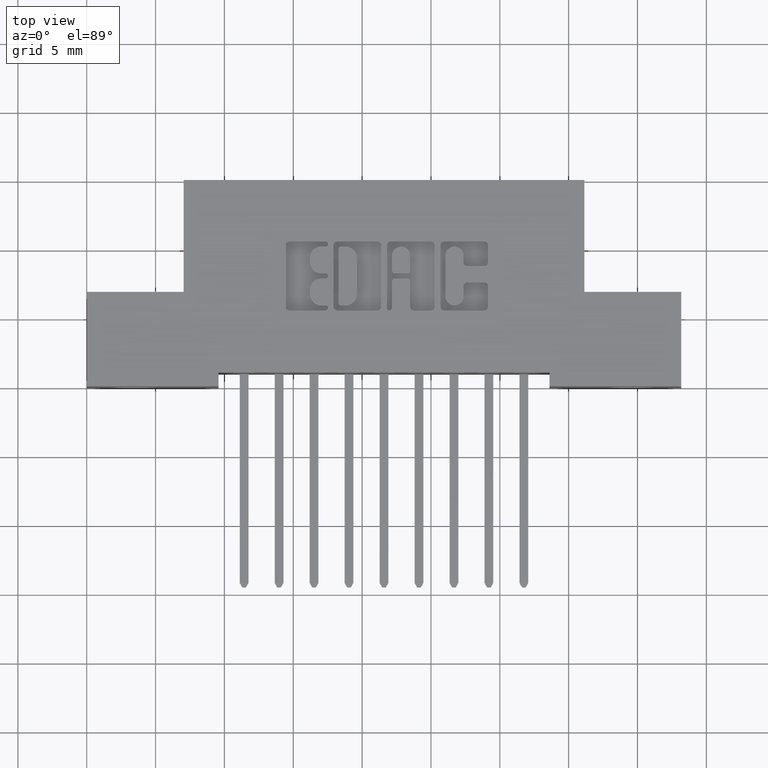
[diagram: clean part render]
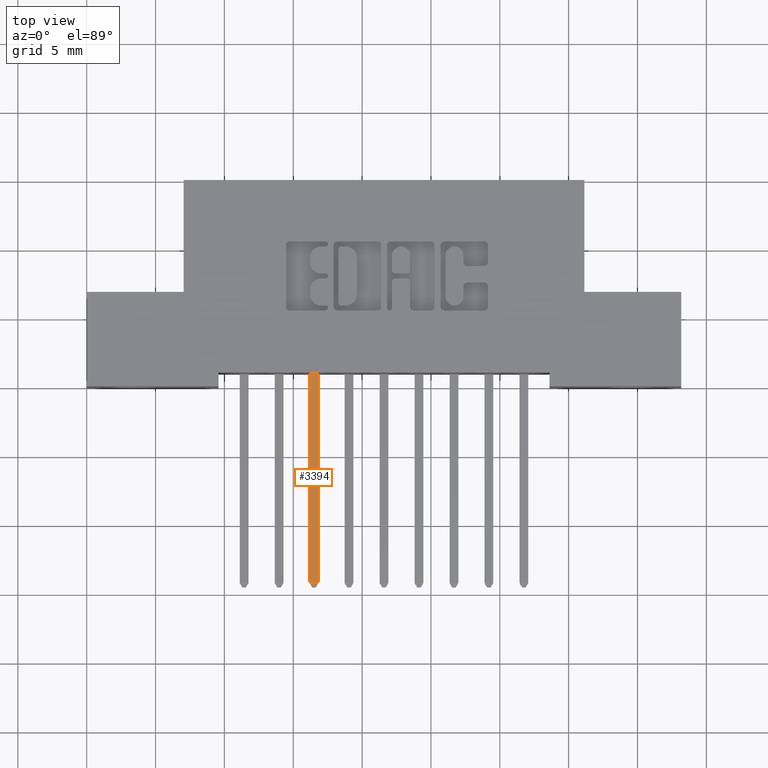
[diagram: same view with one face highlighted and labeled with its STEP entity id]
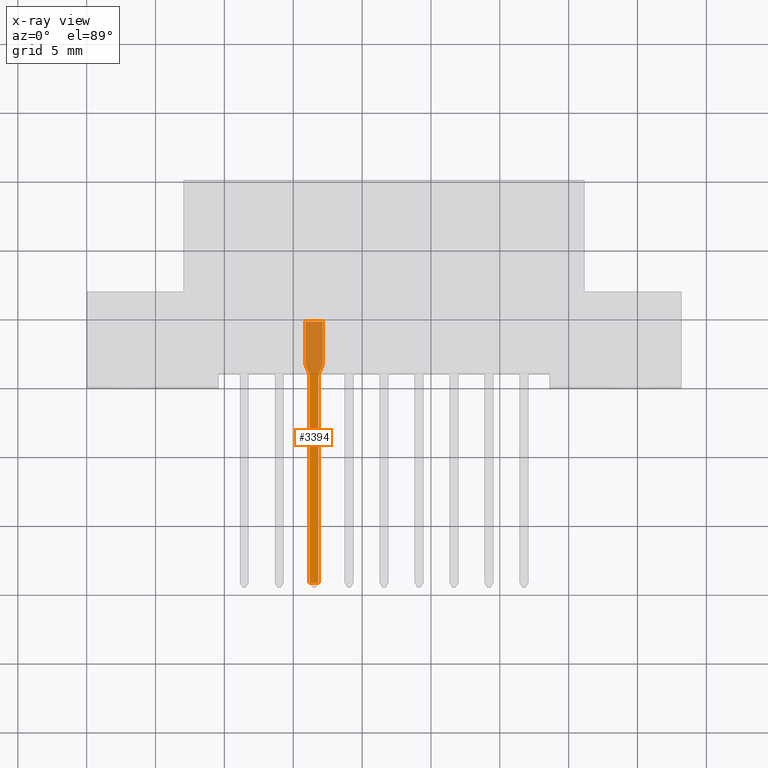
[diagram: x-ray of the same camera — body ghosted, the highlighted face saturated]
A machine part, top view. The second image highlights one B-rep face of the part: STEP entity #3394.
The next image is the same camera in x-ray: the body ghosted, the highlighted face saturated — about 31% of this face is hidden behind the body in this view.
In plain terms, the highlighted planar face has unit normal (0, -0, -1).
Its self-contained STEP definition (entity closure, byte-faithful):
#206 = AXIS2_PLACEMENT_3D ( 'NONE', #2020, #3406, #3615 ) ;
#215 = CARTESIAN_POINT ( 'NONE',  ( 0.6132132034356083700, 0.03749999999999242800, 0.01249999999999993500 ) ) ;
#400 = EDGE_CURVE ( 'NONE', #1043, #1596, #879, .T. ) ;
#497 = VECTOR ( 'NONE', #1145, 39.37007874015748100 ) ;
#539 = CARTESIAN_POINT ( 'NONE',  ( 0.4582132034355987900, 0.03749999999999423900, -0.02499999999999987000 ) ) ;
#879 = LINE ( 'NONE', #6872, #8718 ) ;
#912 = CARTESIAN_POINT ( 'NONE',  ( 0.6132132034356083700, 0.03749999999999447500, -0.01249999999999993500 ) ) ;
#1008 = VERTEX_POINT ( 'NONE', #7038 ) ;
#1043 = VERTEX_POINT ( 'NONE', #3465 ) ;
#1125 = CARTESIAN_POINT ( 'NONE',  ( 1.205213203435595800, 0.03749999999999219200, -0.01249999999999993500 ) ) ;
#1145 = DIRECTION ( 'NONE',  ( -2.116696985329355200E-014, 1.327134286314529600E-016, -1.000000000000000000 ) ) ;
#1265 = EDGE_CURVE ( 'NONE', #5157, #6732, #9160, .T. ) ;
#1290 = EDGE_CURVE ( 'NONE', #1043, #6732, #3461, .T. ) ;
#1453 = EDGE_CURVE ( 'NONE', #5035, #1008, #9263, .T. ) ;
#1503 = VECTOR ( 'NONE', #3699, 39.37007874015748100 ) ;
#1596 = VERTEX_POINT ( 'NONE', #1599 ) ;
#1599 = CARTESIAN_POINT ( 'NONE',  ( 0.6094800926593313400, 0.03749999999999242800, 0.01322293775314374400 ) ) ;
#1821 = DIRECTION ( 'NONE',  ( 5.703758558017122900E-015, -1.000000000000000000, 1.327134286314613900E-016 ) ) ;
#1825 = DIRECTION ( 'NONE',  ( 5.703758558017122900E-015, -1.000000000000000000, 1.327134286314613900E-016 ) ) ;
#2020 = CARTESIAN_POINT ( 'NONE',  ( 0.5802132034356098900, 0.03749999999999423900, -0.02499999999999987000 ) ) ;
#2203 = FACE_OUTER_BOUND ( 'NONE', #4274, .T. ) ;
#2270 = CARTESIAN_POINT ( 'NONE',  ( 0.6094800926593330100, 0.03749999999999447500, -0.01322293775314374400 ) ) ;
#2834 = CIRCLE ( 'NONE', #6416, 0.01000000000000003000 ) ;
#3192 = CARTESIAN_POINT ( 'NONE',  ( 1.205213203435595800, 0.03749999999999267100, -0.01249999999999993500 ) ) ;
#3219 = VECTOR ( 'NONE', #5678, 39.37007874015748100 ) ;
#3226 = VECTOR ( 'NONE', #3976, 39.37007874015748100 ) ;
#3332 = CARTESIAN_POINT ( 'NONE',  ( 0.4582132034355987900, 0.03749999999999423900, 0.02499999999999987000 ) ) ;
#3380 = LINE ( 'NONE', #3700, #1503 ) ;
#3394 = ADVANCED_FACE ( 'NONE', ( #2203 ), #5830, .F. ) ;
#3406 = DIRECTION ( 'NONE',  ( 5.301315481592240000E-015, -1.000000000000000000, -1.327134286315651700E-016 ) ) ;
#3461 = LINE ( 'NONE', #7702, #8701 ) ;
#3465 = CARTESIAN_POINT ( 'NONE',  ( 0.5802132034356045600, 0.03749999999999219200, 0.02499999999999987000 ) ) ;
#3584 = EDGE_CURVE ( 'NONE', #4365, #5035, #7108, .T. ) ;
#3615 = DIRECTION ( 'NONE',  ( -2.116696985329355200E-014, 1.327134286314529600E-016, -1.000000000000000000 ) ) ;
#3699 = DIRECTION ( 'NONE',  ( 1.000000000000000000, -5.301315481592247100E-015, 2.113198204599771600E-014 ) ) ;
#3700 = CARTESIAN_POINT ( 'NONE',  ( 0.4582132034355987900, 0.03749999999999423900, -0.02499999999999987000 ) ) ;
#3816 = VECTOR ( 'NONE', #9480, 39.37007874015748900 ) ;
#3913 = AXIS2_PLACEMENT_3D ( 'NONE', #8620, #1825, #7109 ) ;
#3976 = DIRECTION ( 'NONE',  ( 2.116696985329355200E-014, -1.327134286314529600E-016, 1.000000000000000000 ) ) ;
#4102 = EDGE_CURVE ( 'NONE', #6748, #4365, #6981, .T. ) ;
#4274 = EDGE_LOOP ( 'NONE', ( #6420, #6709, #6789, #6813, #8119, #8530, #8586, #8843, #9167, #9719 ) ) ;
#4365 = VERTEX_POINT ( 'NONE', #912 ) ;
#5035 = VERTEX_POINT ( 'NONE', #2270 ) ;
#5050 = LINE ( 'NONE', #215, #3219 ) ;
#5157 = VERTEX_POINT ( 'NONE', #539 ) ;
#5234 = VECTOR ( 'NONE', #8737, 39.37007874015748100 ) ;
#5300 = VERTEX_POINT ( 'NONE', #9334 ) ;
#5457 = VERTEX_POINT ( 'NONE', #8595 ) ;
#5678 = DIRECTION ( 'NONE',  ( 1.000000000000000000, -4.899158106491877200E-015, 2.117049754956636300E-014 ) ) ;
#5830 = PLANE ( 'NONE',  #206 ) ;
#6416 = AXIS2_PLACEMENT_3D ( 'NONE', #6472, #1821, #7204 ) ;
#6420 = ORIENTED_EDGE ( 'NONE', *, *, #8578, .T. ) ;
#6472 = CARTESIAN_POINT ( 'NONE',  ( 0.6132132034356083700, 0.03749999999999242800, 0.02249999999999996400 ) ) ;
#6609 = EDGE_CURVE ( 'NONE', #5157, #1008, #3380, .T. ) ;
#6709 = ORIENTED_EDGE ( 'NONE', *, *, #7146, .T. ) ;
#6732 = VERTEX_POINT ( 'NONE', #3332 ) ;
#6748 = VERTEX_POINT ( 'NONE', #3192 ) ;
#6789 = ORIENTED_EDGE ( 'NONE', *, *, #4102, .T. ) ;
#6813 = ORIENTED_EDGE ( 'NONE', *, *, #3584, .T. ) ;
#6872 = CARTESIAN_POINT ( 'NONE',  ( 0.5802132034356045600, 0.03749999999999242800, 0.02499999999999987000 ) ) ;
#6939 = LINE ( 'NONE', #1125, #497 ) ;
#6981 = LINE ( 'NONE', #8755, #5234 ) ;
#7038 = CARTESIAN_POINT ( 'NONE',  ( 0.5802132034356098900, 0.03749999999999423900, -0.02499999999999987000 ) ) ;
#7108 = CIRCLE ( 'NONE', #3913, 0.009999999999999962000 ) ;
#7109 = DIRECTION ( 'NONE',  ( 1.000000000000000000, -4.695363739110470100E-015, 2.134256245050213700E-014 ) ) ;
#7146 = EDGE_CURVE ( 'NONE', #5300, #6748, #6939, .T. ) ;
#7204 = DIRECTION ( 'NONE',  ( -1.000000000000000000, 4.695363739110437800E-015, -2.134256245050199500E-014 ) ) ;
#7491 = DIRECTION ( 'NONE',  ( 0.9277062246856283600, -4.597912085683818800E-015, -0.3733110776276781200 ) ) ;
#7702 = CARTESIAN_POINT ( 'NONE',  ( 0.4582132034355987900, 0.03749999999999423900, 0.02499999999999987000 ) ) ;
#8119 = ORIENTED_EDGE ( 'NONE', *, *, #1453, .T. ) ;
#8387 = CARTESIAN_POINT ( 'NONE',  ( 0.4582132034356028400, 0.03749999999999423900, -0.05764965543462898700 ) ) ;
#8530 = ORIENTED_EDGE ( 'NONE', *, *, #6609, .F. ) ;
#8578 = EDGE_CURVE ( 'NONE', #5457, #5300, #5050, .T. ) ;
#8586 = ORIENTED_EDGE ( 'NONE', *, *, #1265, .T. ) ;
#8595 = CARTESIAN_POINT ( 'NONE',  ( 0.6132132034356083700, 0.03749999999999242800, 0.01249999999999993500 ) ) ;
#8620 = CARTESIAN_POINT ( 'NONE',  ( 0.6132132034356083700, 0.03749999999999447500, -0.02250000000000010000 ) ) ;
#8639 = DIRECTION ( 'NONE',  ( -1.000000000000000000, 5.301315481592247100E-015, -2.120195766058952000E-014 ) ) ;
#8701 = VECTOR ( 'NONE', #8639, 39.37007874015748100 ) ;
#8718 = VECTOR ( 'NONE', #7491, 39.37007874015748900 ) ;
#8737 = DIRECTION ( 'NONE',  ( -1.000000000000000000, 4.899158106491877200E-015, -2.116344215702074400E-014 ) ) ;
#8755 = CARTESIAN_POINT ( 'NONE',  ( 0.6132132034356083700, 0.03749999999999447500, -0.01249999999999993500 ) ) ;
#8843 = ORIENTED_EDGE ( 'NONE', *, *, #1290, .F. ) ;
#8965 = CARTESIAN_POINT ( 'NONE',  ( 0.5802132034356098900, 0.03749999999999447500, -0.02499999999999987000 ) ) ;
#9160 = LINE ( 'NONE', #8387, #3226 ) ;
#9167 = ORIENTED_EDGE ( 'NONE', *, *, #400, .T. ) ;
#9242 = EDGE_CURVE ( 'NONE', #1596, #5457, #2834, .T. ) ;
#9263 = LINE ( 'NONE', #8965, #3816 ) ;
#9334 = CARTESIAN_POINT ( 'NONE',  ( 1.205213203435595800, 0.03749999999999068700, 0.01249999999999993500 ) ) ;
#9480 = DIRECTION ( 'NONE',  ( -0.9277062246856137000, 4.696998871799879800E-015, -0.3733110776277146500 ) ) ;
#9719 = ORIENTED_EDGE ( 'NONE', *, *, #9242, .T. ) ;